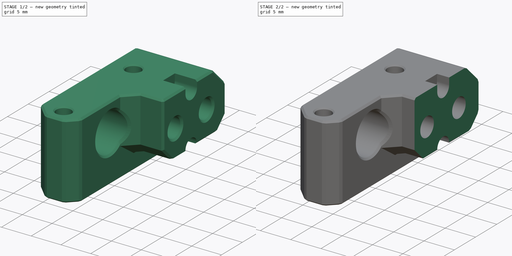
[diagram: build sequence overview — one tinted view per stage of 2, left to right]
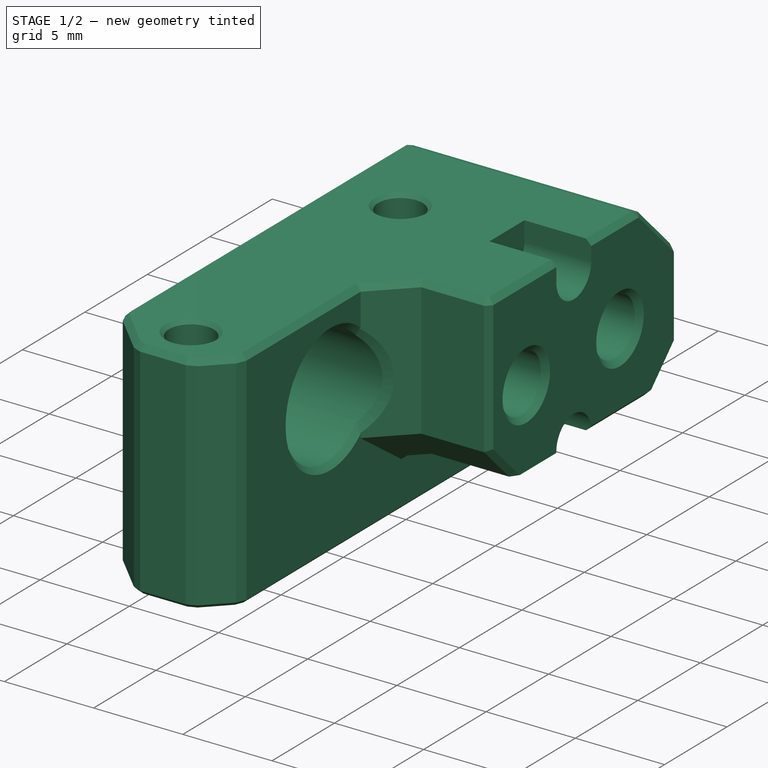
[diagram: stage 1 of 2 — iso view after this stage's code; geometry added in this stage tinted green]
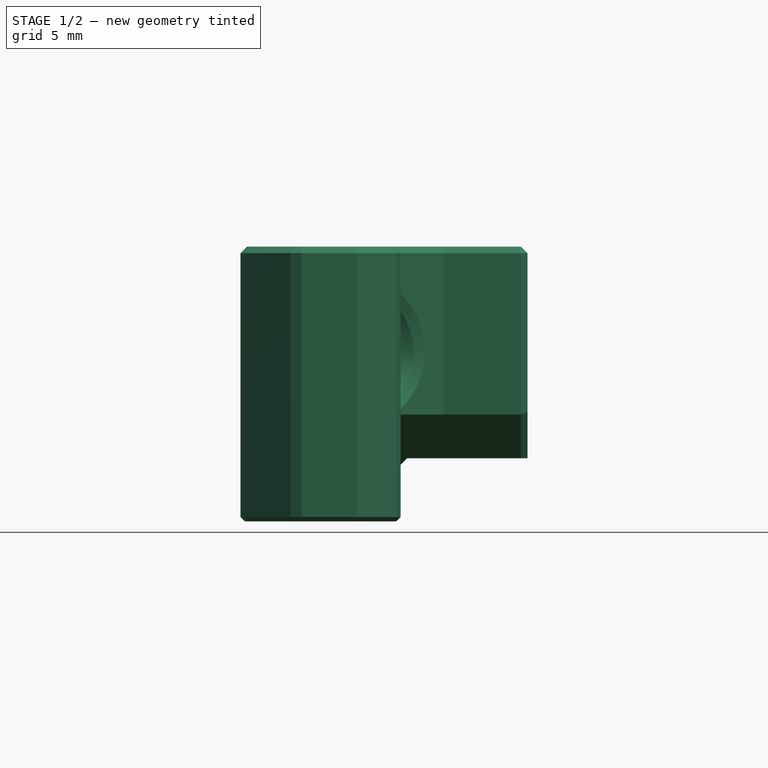
[diagram: stage 1 of 2 — front view after this stage's code; geometry added in this stage tinted green]
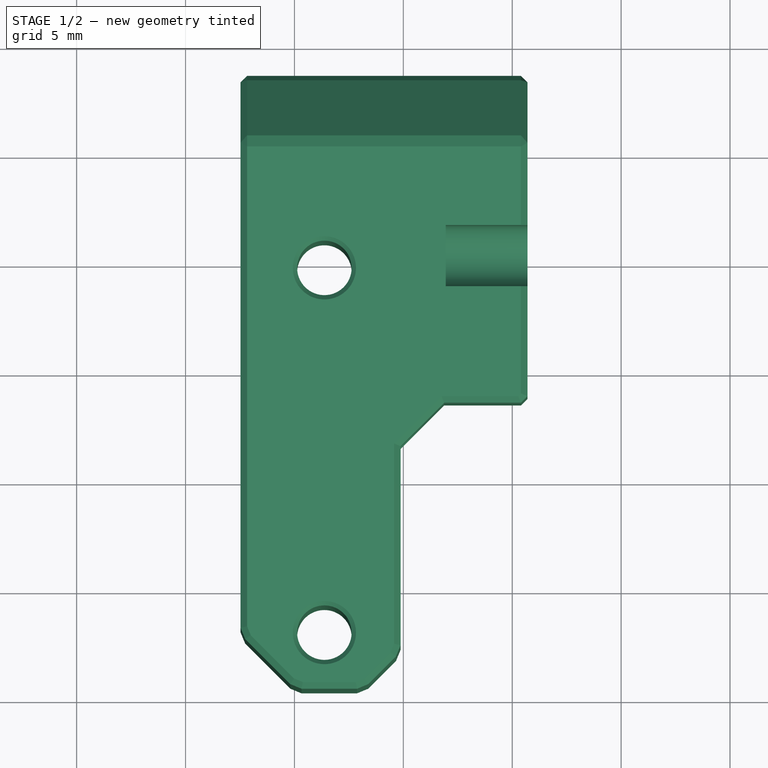
[diagram: stage 1 of 2 — top view after this stage's code; geometry added in this stage tinted green]
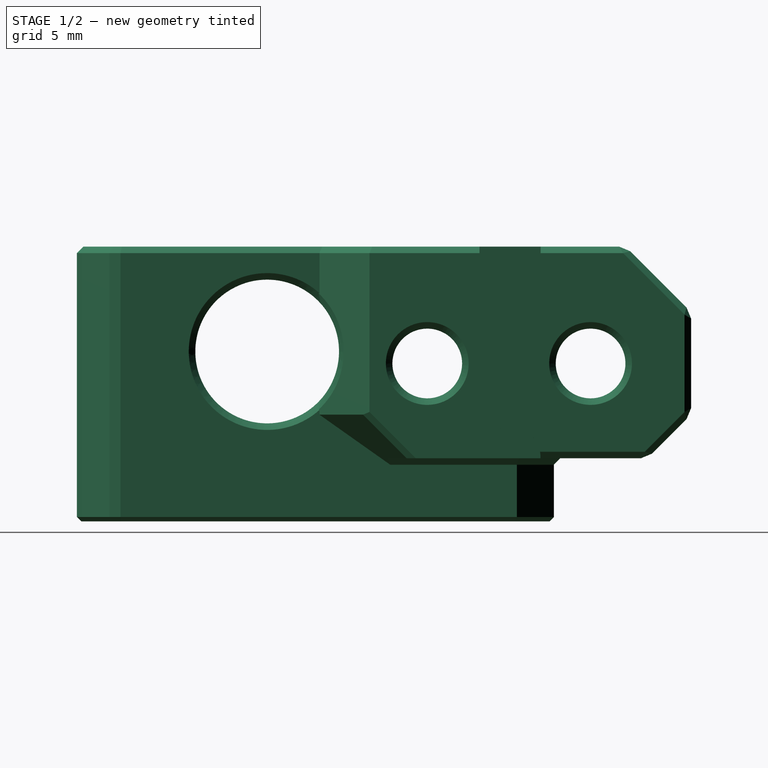
[diagram: stage 1 of 2 — right view after this stage's code; geometry added in this stage tinted green]
FCSTD DOCUMENT  (FreeCAD 0.22R36807 (Git))
Label: k1 btt microprobe mount
License: All rights reserved
LicenseURL: http://en.wikipedia.org/wiki/All_rights_reserved
objects: Sketcher::SketchObject×3, PartDesign::Pocket×3, Part::Feature×1, PartDesign::FeatureBase×1, PartDesign::Plane×1, PartDesign::Body×1
note: 13 computed .brp shape members not serialized (recipe doc carries the construction recipe); baked Part::Feature solids carry a one-line shape summary decoded from their .brp

FEATURE [Part::Feature] CR_K1_C_MAX_BIQU_MicroProbe_v2_Adapter_v5_by_StarCom_Lab
  shape: bbox 13.19 x 28.21 x 12.63 mm, 112 faces (baked)
FEATURE [PartDesign::FeatureBase] BaseFeature
  BaseFeature = -> CR_K1_C_MAX_BIQU_MicroProbe_v2_Adapter_v5_by_StarCom_Lab
  Suppressed = false
FEATURE [PartDesign::Plane] DatumPlane
  AttachmentSupport = -> [BaseFeature]
  Length = 78.5067
  MapMode = 5
  Placement = pos=(-24.3,0,-3.66e-14) rot=(0.57735,0.57735,0.57735;2.0944rad)
  ResizeMode = 0
  Width = 434.823
FEATURE [Sketcher::SketchObject] Sketch
  AttachmentSupport = -> [DatumPlane]
  ExternalGeometry = -> [BaseFeature]
  FullyConstrained = false
  MapMode = 5
  Placement = pos=(-24.3,0,-3.66e-14) rot=(0.57735,0.57735,0.57735;2.0944rad)
  sketch-geometry (6):
    g0: ArcOfCircle CenterX=-4.7 CenterY=380.25 CenterZ=0 NormalX=0 NormalY=0 NormalZ=1 AngleXU=0 Radius=1.4 StartAngle=3.09433 EndAngle=6.33045
    g1: Circle CenterX=-4.7 CenterY=371.65 CenterZ=0 NormalX=0 NormalY=0 NormalZ=1 AngleXU=0 Radius=1.4
    g2: LineSegment StartX=-3.30156 StartY=380.316 StartZ=0 EndX=-3.29661 EndY=380.316 EndZ=0
    g3: LineSegment StartX=-3.29661 StartY=380.316 StartZ=0 EndX=-3.29661 EndY=381.754 EndZ=0
    g4: LineSegment StartX=-3.29661 StartY=381.754 StartZ=0 EndX=-6.09844 EndY=381.754 EndZ=0
    g5: LineSegment StartX=-6.09844 StartY=381.754 StartZ=0 EndX=-6.09844 EndY=380.316 EndZ=0
  constraints (12):
    c: Tangent(g1,g-4) = -1.5708
    c: Coincident(g2,g3)
    c: Coincident(g3,g4)
    c: Coincident(g4,g5)
    c: Horizontal(g2)
    c: Horizontal(g4)
    c: Vertical(g3)
    c: Vertical(g5)
    c: Coincident(g5,g-3)
    c: Tangent(g0,g-3) = -1.5708
    c: Coincident(g0,g5)
    c: PointOnObject(g2,g-3)
FEATURE [PartDesign::Pocket] Pocket
  BaseFeature = -> BaseFeature
  Direction = (-1,0,-1.3e-15)
  Length = 3.75
  Length2 = 5
  Profile = -> Sketch
  ReferenceAxis = -> Sketch [N_Axis]
  Suppressed = false
  Type = 0
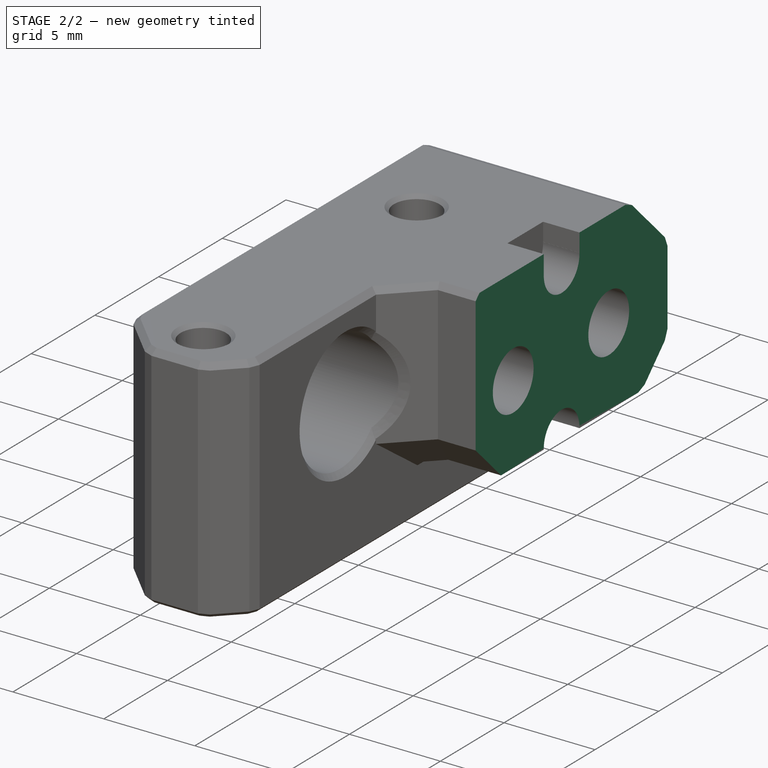
[diagram: stage 2 of 2 — iso view after this stage's code; geometry added in this stage tinted green]
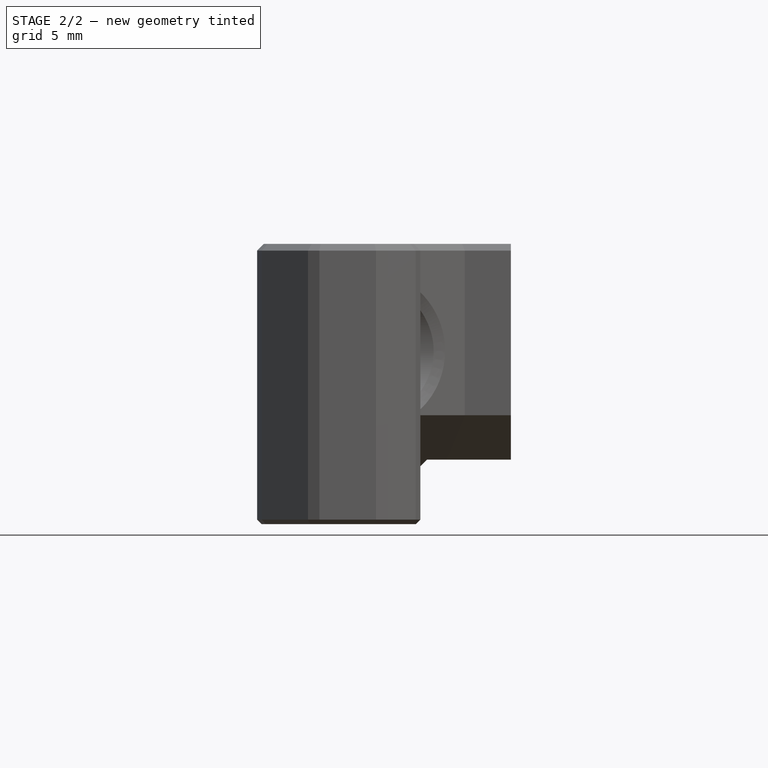
[diagram: stage 2 of 2 — front view after this stage's code; geometry added in this stage tinted green]
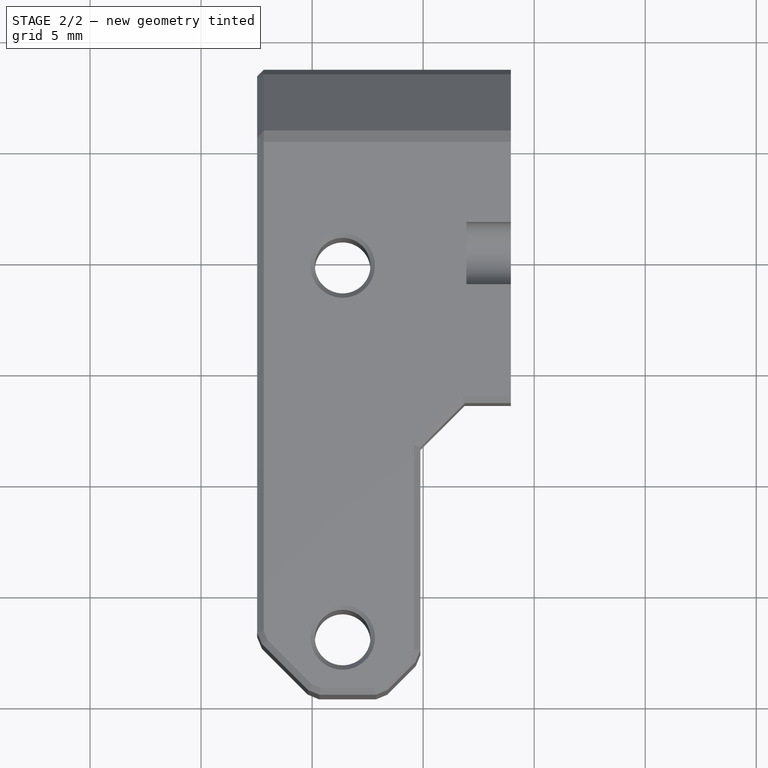
[diagram: stage 2 of 2 — top view after this stage's code; geometry added in this stage tinted green]
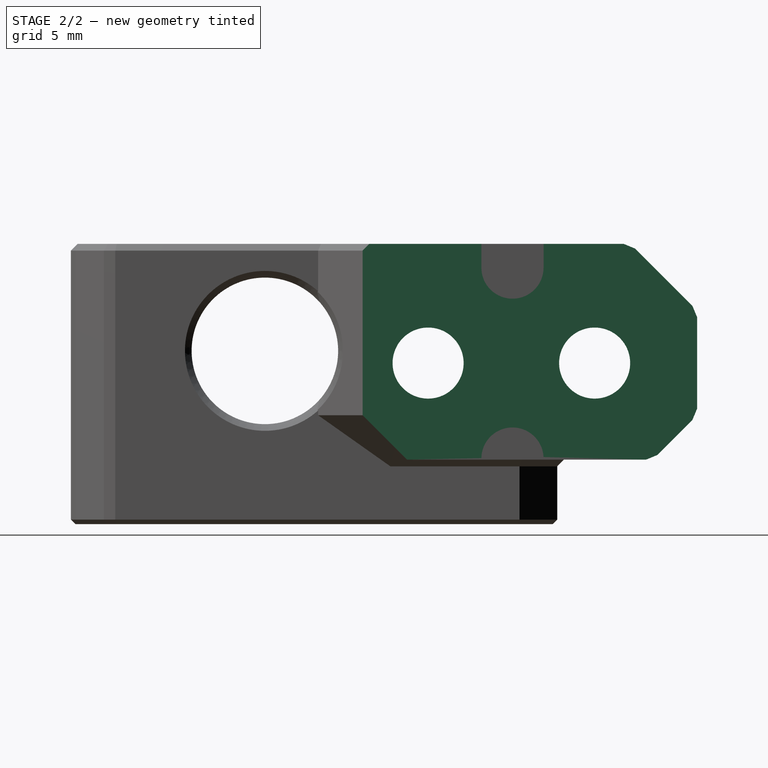
[diagram: stage 2 of 2 — right view after this stage's code; geometry added in this stage tinted green]
FEATURE [Sketcher::SketchObject] Sketch001
  AttachmentSupport = -> [Pocket]
  ExternalGeometry = -> [Pocket]
  FullyConstrained = true
  MapMode = 5
  Placement = pos=(3e-16,1.0145e-12,368.7) rot=(1,0,0;3.14159rad)
  sketch-geometry (2):
    g0: Circle CenterX=-33.6247 CenterY=5.26071 CenterZ=0 NormalX=0 NormalY=0 NormalZ=1 AngleXU=0 Radius=1.5
    g1: Circle CenterX=-33.6247 CenterY=22.0107 CenterZ=0 NormalX=0 NormalY=0 NormalZ=1 AngleXU=0 Radius=1.5
  constraints (4):
    c: Coincident(g0,g-4)
    c: Coincident(g1,g-3)
    c: Equal(g1,g0)
    c: Diameter(g1) = 3
FEATURE [PartDesign::Pocket] Pocket001
  BaseFeature = -> Pocket
  Direction = (0,2.8e-15,1)
  Length = 0.5
  Length2 = 5
  Profile = -> Sketch001
  ReferenceAxis = -> Sketch001 [N_Axis]
  Suppressed = false
  Type = 0
FEATURE [Sketcher::SketchObject] Sketch002
  AttachmentSupport = -> [Pocket001]
  FullyConstrained = false
  MapMode = 5
  Placement = pos=(-24.3,0,-3.66e-14) rot=(0.57735,0.57735,0.57735;2.0944rad)
  sketch-geometry (4):
    g0: LineSegment StartX=-14.4128 StartY=382.015 StartZ=0 EndX=-14.4128 EndY=369.818 EndZ=0
    g1: LineSegment StartX=-14.4128 StartY=369.818 StartZ=0 EndX=5.4014 EndY=369.818 EndZ=0
    g2: LineSegment StartX=5.4014 StartY=369.818 StartZ=0 EndX=5.4014 EndY=382.015 EndZ=0
    g3: LineSegment StartX=5.4014 StartY=382.015 StartZ=0 EndX=-14.4128 EndY=382.015 EndZ=0
  constraints (8):
    c: Coincident(g0,g1)
    c: Coincident(g1,g2)
    c: Coincident(g2,g3)
    c: Coincident(g3,g0)
    c: Vertical(g0)
    c: Vertical(g2)
    c: Horizontal(g1)
    c: Horizontal(g3)
FEATURE [PartDesign::Pocket] Pocket002
  BaseFeature = -> Pocket001
  Direction = (-1,-1e-16,-1.4e-15)
  Length = 1.75
  Length2 = 5
  Profile = -> Sketch002
  ReferenceAxis = -> Sketch002 [N_Axis]
  Suppressed = false
  Type = 0
FEATURE [PartDesign::Body] Body
  BaseFeature = -> CR_K1_C_MAX_BIQU_MicroProbe_v2_Adapter_v5_by_StarCom_Lab
  Group = -> [BaseFeature,DatumPlane,Sketch,Pocket,Sketch001,Pocket001,Sketch002,Pocket002]
  Origin = -> Origin
  Tip = -> Pocket002
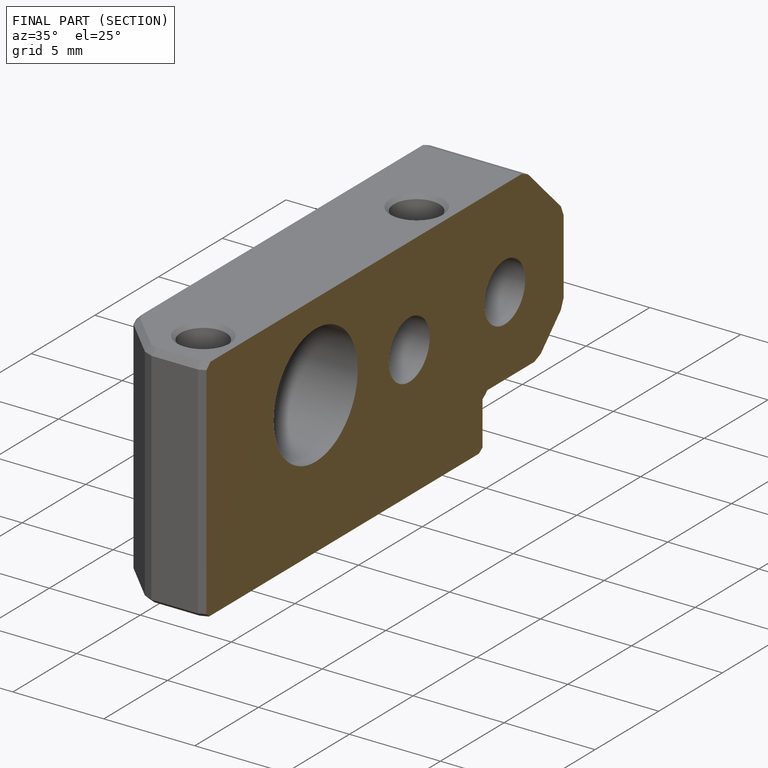
[diagram: finished part — half-section view (interior)]
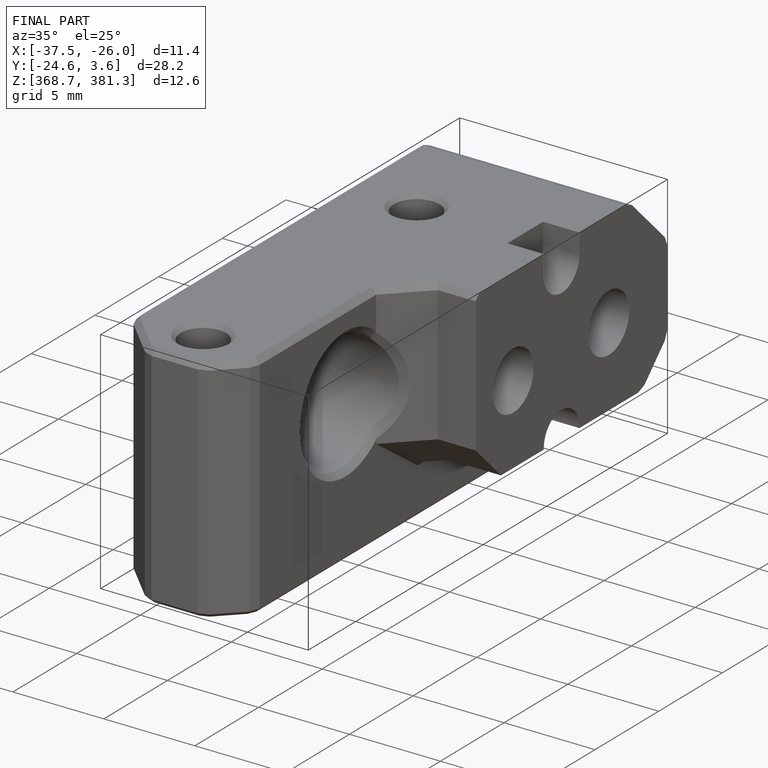
[diagram: finished part — iso view with bounding-box wireframe]
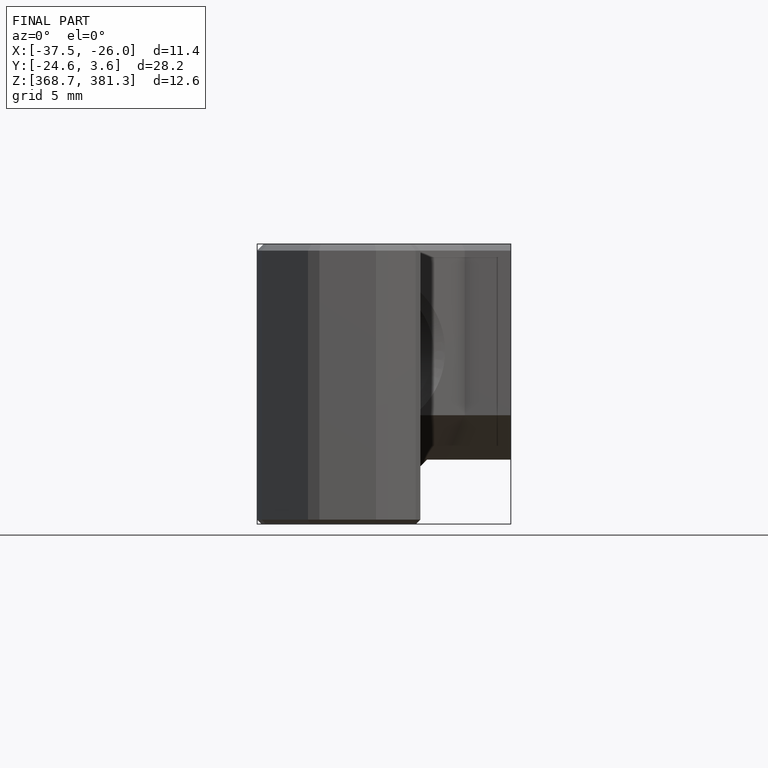
[diagram: finished part — front view with bounding-box wireframe]
